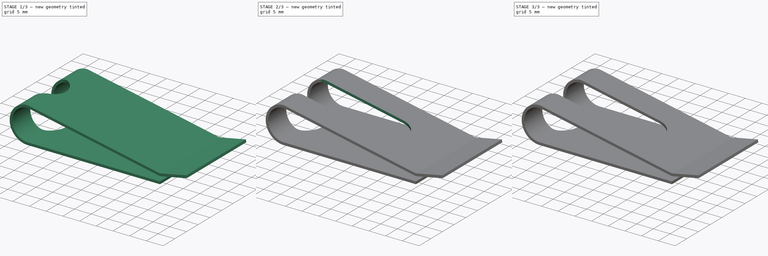
[diagram: build sequence overview — one tinted view per stage of 3, left to right]
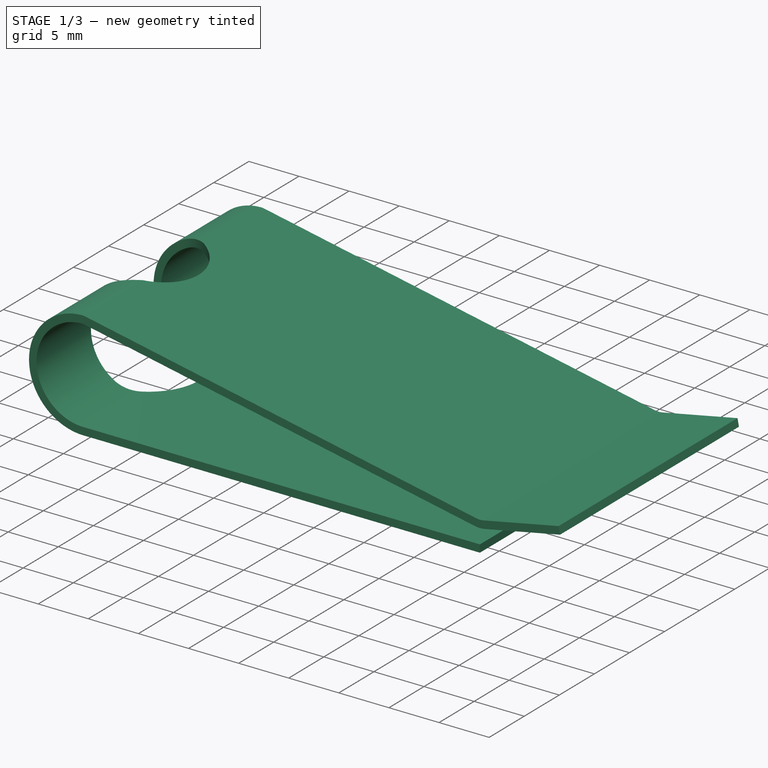
[diagram: stage 1 of 3 — iso view after this stage's code; geometry added in this stage tinted green]
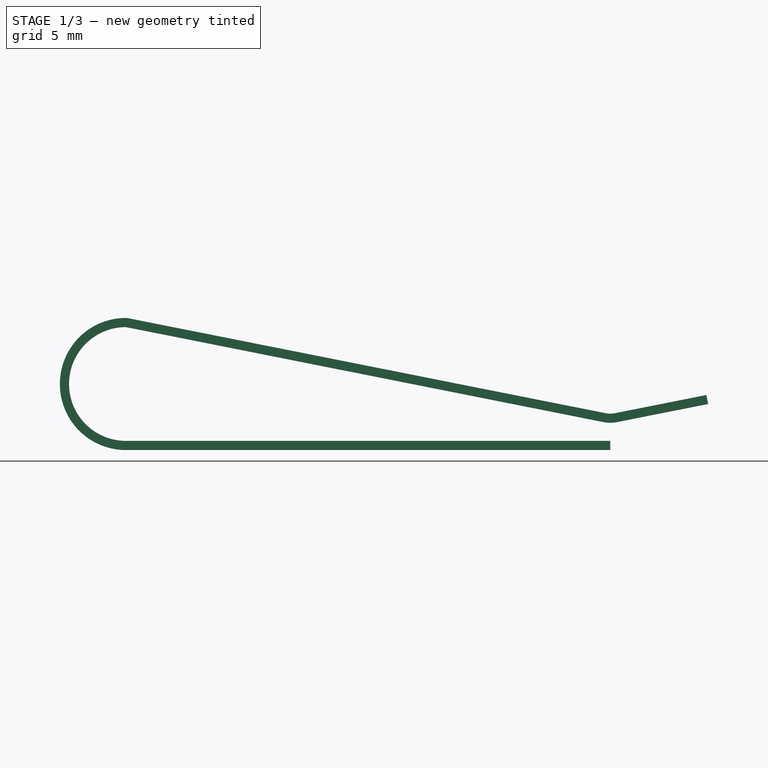
[diagram: stage 1 of 3 — front view after this stage's code; geometry added in this stage tinted green]
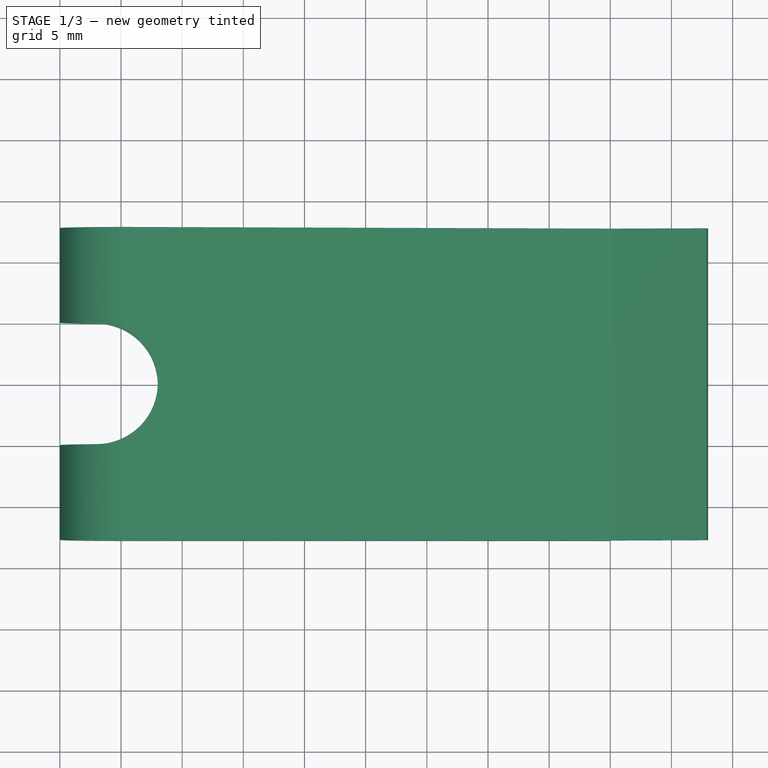
[diagram: stage 1 of 3 — top view after this stage's code; geometry added in this stage tinted green]
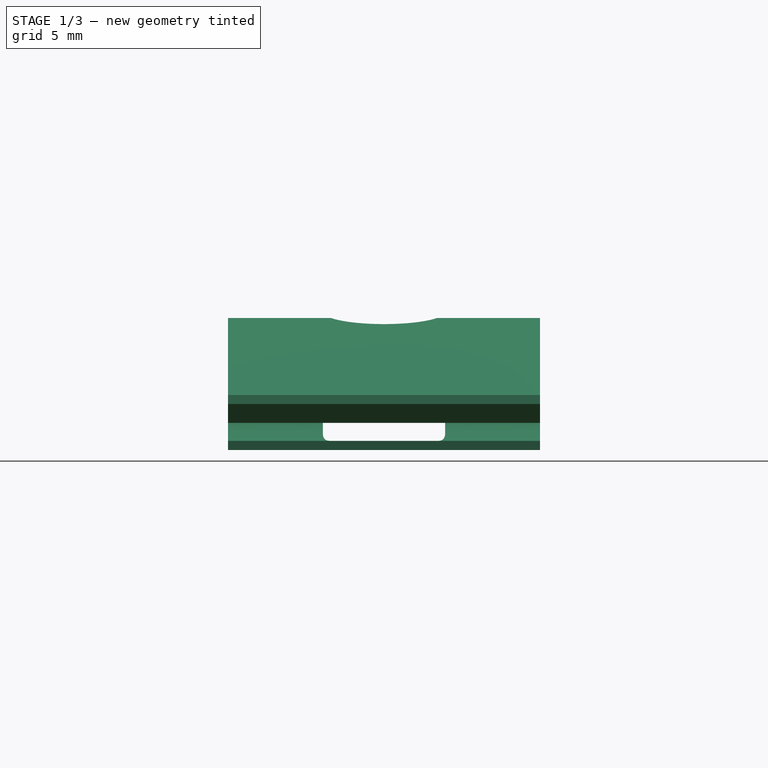
[diagram: stage 1 of 3 — right view after this stage's code; geometry added in this stage tinted green]
FCSTD DOCUMENT  (FreeCAD 0.19R22039 (Git))
Label: Bluemoona Metal Belt Clip
License: All rights reserved
LicenseURL: http://en.wikipedia.org/wiki/All_rights_reserved
objects: Sketcher::SketchObject×4, PartDesign::Pocket×3, Part::Feature×2, PartDesign::Pad×1, PartDesign::LinearPattern×1, PartDesign::Body×1, App::Part×1
note: 16 computed .brp shape members not serialized (recipe doc carries the construction recipe); baked Part::Feature solids carry a one-line shape summary decoded from their .brp

FEATURE [Sketcher::SketchObject] Sketch
  MapMode = 5
  Placement = pos=(0,0,0) rot=(1,0,0;1.5708rad)
  Support = -> [XZ_Plane001]
  sketch-geometry (13):
    g0: LineSegment StartX=0 StartY=0 StartZ=0 EndX=-39.5997 EndY=0 EndZ=0
    g1: ArcOfCircle CenterX=-39.5997 CenterY=5.40027 CenterZ=0 NormalX=0 NormalY=0 NormalZ=1 AngleXU=0 Radius=5.40027 StartAngle=1.55661 EndAngle=4.71239
    g2: LineSegment StartX=-39.5231 StartY=10.8 StartZ=0 EndX=-0.387961 EndY=3.01485 EndZ=0
    g3: ArcOfCircle CenterX=0 CenterY=4.96509 CenterZ=0 NormalX=0 NormalY=0 NormalZ=1 AngleXU=0 Radius=1.98846 StartAngle=4.51602 EndAngle=4.90876
    g4: LineSegment StartX=0.387961 StartY=3.01485 StartZ=0 EndX=7.85367 EndY=4.5 EndZ=0
    g5: LineSegment StartX=0 StartY=0.75 StartZ=0 EndX=-39.5997 EndY=0.75 EndZ=0
    g6: ArcOfCircle CenterX=-39.5997 CenterY=5.40027 CenterZ=0 NormalX=0 NormalY=0 NormalZ=1 AngleXU=0 Radius=4.65027 StartAngle=1.5708 EndAngle=4.71239
    g7: LineSegment StartX=-39.5997 StartY=10.0505 StartZ=0 EndX=-0.534291 EndY=2.27926 EndZ=0
    g8: ArcOfCircle CenterX=0 CenterY=4.96509 CenterZ=0 NormalX=0 NormalY=0 NormalZ=1 AngleXU=0 Radius=2.73846 StartAngle=4.51602 EndAngle=4.90876
    g9: LineSegment StartX=0.534291 StartY=2.27926 StartZ=0 EndX=8 EndY=3.76441 EndZ=0
    g10: LineSegment StartX=7.85367 StartY=4.5 StartZ=0 EndX=8 EndY=3.76441 EndZ=0
    g11: LineSegment StartX=0 StartY=0.75 StartZ=0 EndX=0 EndY=0 EndZ=0
    g12: GeomPoint X=-45 Y=5.40027 Z=0
  constraints (32):
    c: PointOnObject(g0,g-1)
    c: Tangent(g0,g1) = 1.5708
    c: Tangent(g2,g3) = -1.5708
    c: Tangent(g3,g4) = -1.5708
    c: Tangent(g5,g6) = 1.5708
    c: Tangent(g7,g8) = -1.5708
    c: Tangent(g8,g9) = -1.5708
    c: Coincident(g10,g4)
    c: Coincident(g10,g9)
    c: Coincident(g11,g5)
    c: Coincident(g11,g0)
    c: Vertical(g11)
    c: Perpendicular(g10,g4)
    c: Perpendicular(g9,g10)
    c: Horizontal(g5)
    c: Coincident(g1,g6)
    c: Coincident(g8,g3)
    c: PointOnObject(g12,g1)
    c: DistanceY(g1,g12) = 0
    c: Distance(g11) = 0.75
    c: Distance(g10) = 0.75
    c: Parallel(g7,g2)
    c: DistanceX(g12,g9) = 53
    c: DistanceX(g3,g0) = 0
    c: Coincident(g7,g6)
    c: Coincident(g2,g1)
    c: DistanceY(g0,g1) = 10.8
    c: DistanceX(g12,g0) = 45
    c: DistanceY(g0,g4) = 4.5
    c: Horizontal(g3,g2)
    c: Coincident(g-1,g0)
    c: Vertical(g1,g6)
FEATURE [PartDesign::Pad] Pad
  Length = 25.5
  Length2 = 100
  Midplane = true
  Placement = pos=(0,0,0) rot=(1,0,0;1.5708rad)
  Profile = -> Sketch
  Type = 0
FEATURE [Sketcher::SketchObject] Sketch001
  MapMode = 5
  Support = -> [XY_Plane001]
  sketch-geometry (5):
    g0: ArcOfCircle CenterX=-42 CenterY=0 CenterZ=0 NormalX=0 NormalY=0 NormalZ=1 AngleXU=0 Radius=5 StartAngle=4.7124 EndAngle=7.85398
    g1: LineSegment StartX=-42 StartY=5 StartZ=0 EndX=-56.505 EndY=5 EndZ=0
    g2: LineSegment StartX=-56.505 StartY=5 StartZ=0 EndX=-56.505 EndY=-5 EndZ=0
    g3: LineSegment StartX=-42 StartY=-5 StartZ=0 EndX=-56.505 EndY=-5 EndZ=0
    g4: GeomPoint X=-37 Y=0 Z=0
  constraints (14):
    c: PointOnObject(g0,g-1)
    c: Radius(g0) = 5
    c: Coincident(g1,g0)
    c: Horizontal(g1)
    c: Coincident(g2,g1)
    c: Vertical(g2)
    c: Coincident(g3,g0)
    c: Coincident(g3,g2)
    c: Horizontal(g3)
    c: DistanceY(g2,g2) = 10
    c: PointOnObject(g4,g0)
    c: PointOnObject(g4,g-1)
    c: DistanceX(g4,g-1) = 37
    c: Vertical(g0,g0)
FEATURE [PartDesign::Pocket] Pocket
  BaseFeature = -> Pad
  Length = 12
  Length2 = 100
  Placement = pos=(0,0,0) rot=(1,0,0;1.5708rad)
  Profile = -> Sketch001
  Reversed = true
  Type = 0
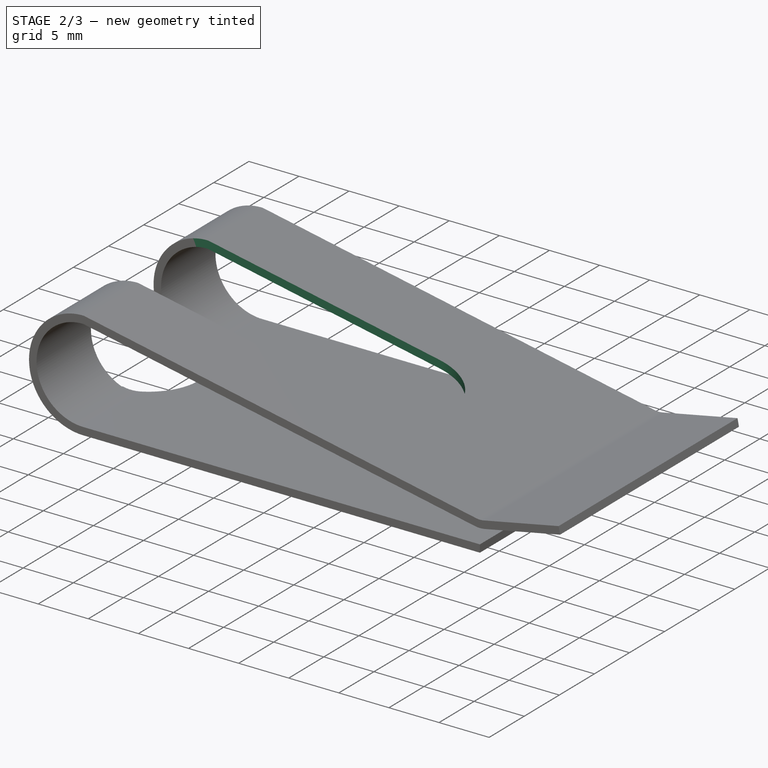
[diagram: stage 2 of 3 — iso view after this stage's code; geometry added in this stage tinted green]
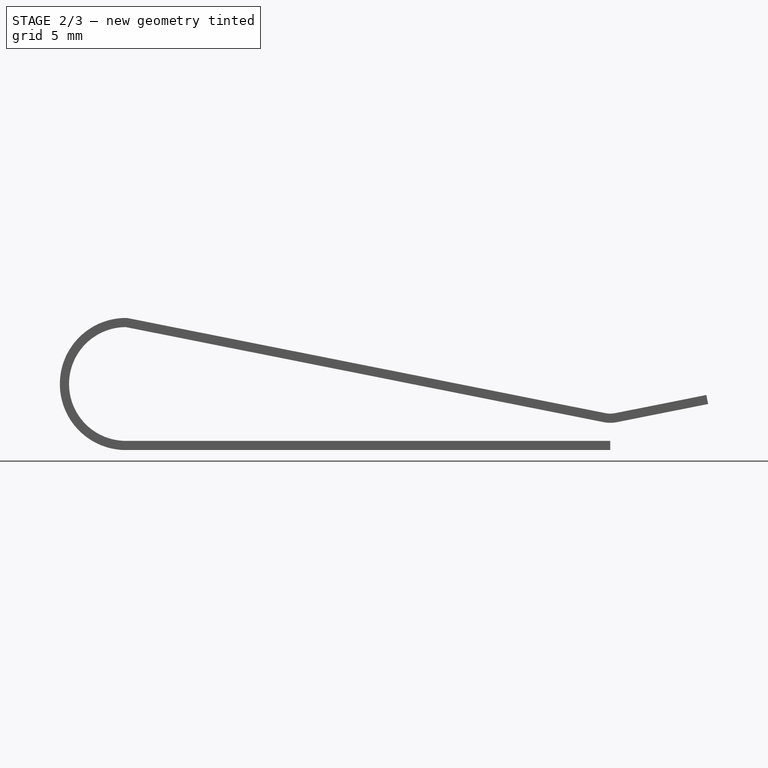
[diagram: stage 2 of 3 — front view after this stage's code; geometry added in this stage tinted green]
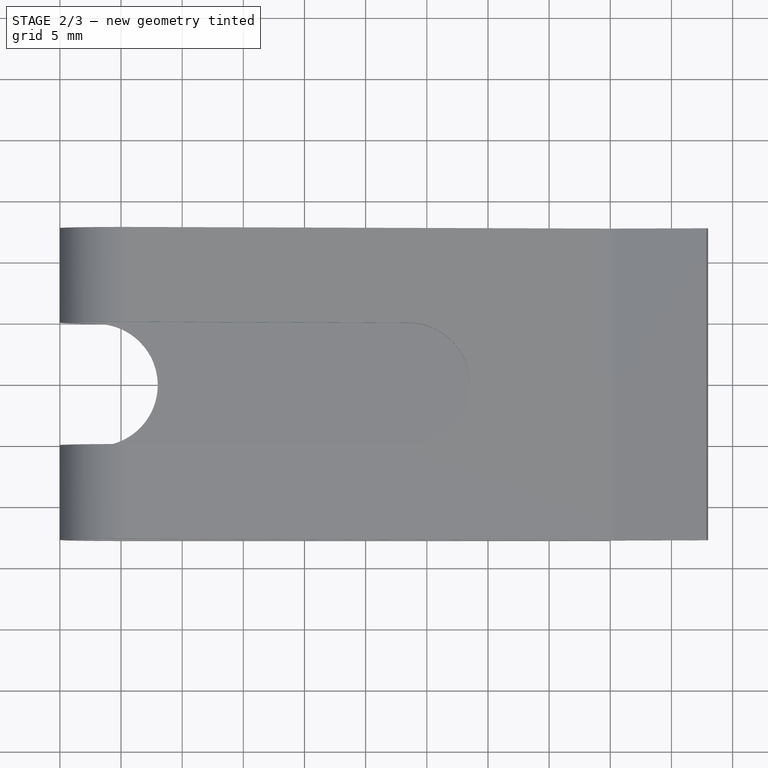
[diagram: stage 2 of 3 — top view after this stage's code; geometry added in this stage tinted green]
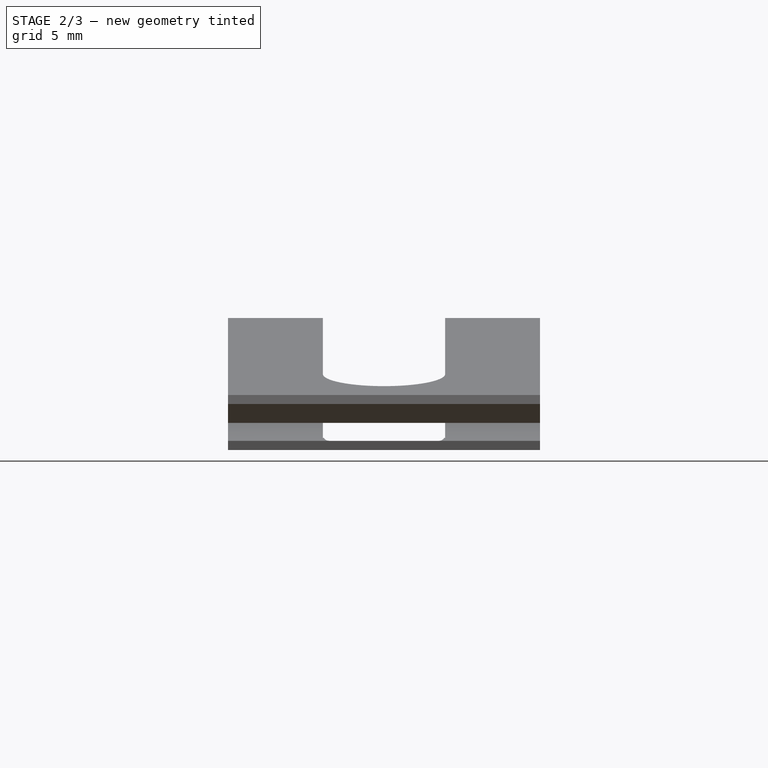
[diagram: stage 2 of 3 — right view after this stage's code; geometry added in this stage tinted green]
FEATURE [Sketcher::SketchObject] Sketch002
  AttachmentOffset = pos=(0,0,1) rot=(0,0,1;0rad)
  MapMode = 5
  Placement = pos=(0,0,1) rot=(0,0,1;0rad)
  Support = -> [XY_Plane001]
  expr: Constraints[9] = Sketch001.Constraints[9]
  expr: Constraints[1] = Sketch001.Constraints[1]
  sketch-geometry (5):
    g0: ArcOfCircle CenterX=-16.5 CenterY=0 CenterZ=0 NormalX=0 NormalY=0 NormalZ=1 AngleXU=0 Radius=5 StartAngle=4.71239 EndAngle=7.85398
    g1: LineSegment StartX=-16.5 StartY=5 StartZ=0 EndX=-55.5394 EndY=5 EndZ=0
    g2: LineSegment StartX=-55.5394 StartY=5 StartZ=0 EndX=-55.5394 EndY=-5 EndZ=0
    g3: LineSegment StartX=-16.5 StartY=-5 StartZ=0 EndX=-55.5394 EndY=-5 EndZ=0
    g4: GeomPoint X=-11.5 Y=0 Z=0
  constraints (13):
    c: PointOnObject(g0,g-1)
    c: Radius(g0) = 5
    c: Coincident(g1,g0)
    c: Horizontal(g1)
    c: Coincident(g2,g1)
    c: Vertical(g2)
    c: Coincident(g3,g0)
    c: Coincident(g3,g2)
    c: Horizontal(g3)
    c: DistanceY(g2,g2) = 10
    c: PointOnObject(g4,g0)
    c: PointOnObject(g4,g-1)
    c: DistanceX(g4,g-1) = 11.5
FEATURE [PartDesign::Pocket] Pocket001
  BaseFeature = -> Pocket
  Length = 0
  Length2 = 7
  Placement = pos=(0,0,0) rot=(1,0,0;1.5708rad)
  Profile = -> Sketch002
  Reversed = true
  Type = 3
  UpToFace = -> Pocket [Face11]
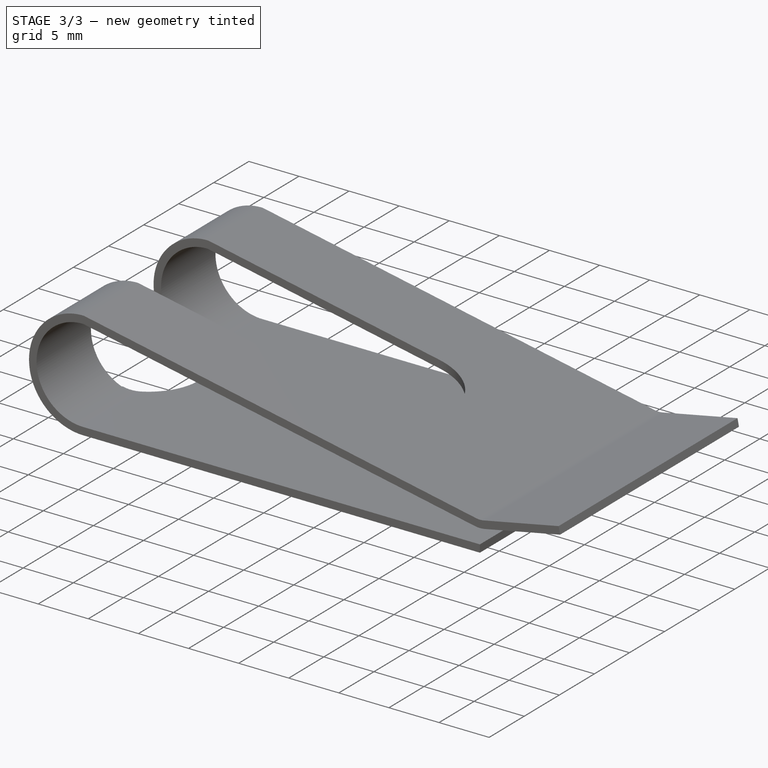
[diagram: stage 3 of 3 — iso view after this stage's code; geometry added in this stage tinted green]
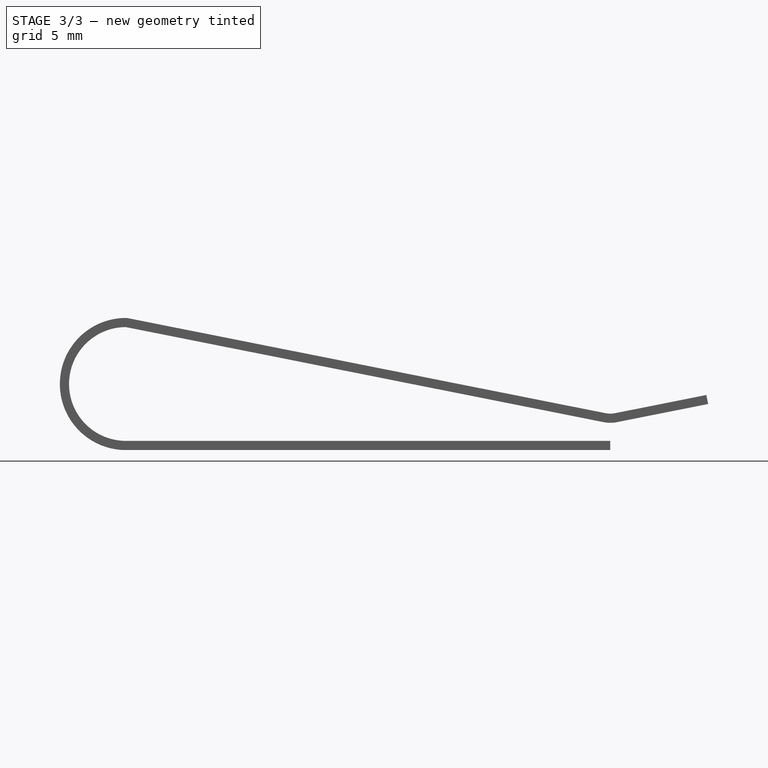
[diagram: stage 3 of 3 — front view after this stage's code; geometry added in this stage tinted green]
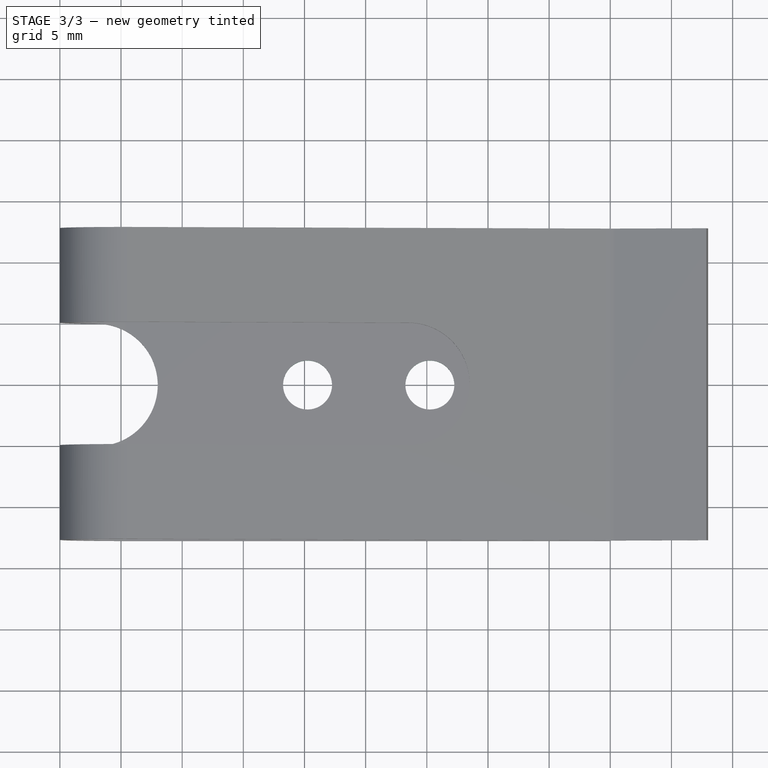
[diagram: stage 3 of 3 — top view after this stage's code; geometry added in this stage tinted green]
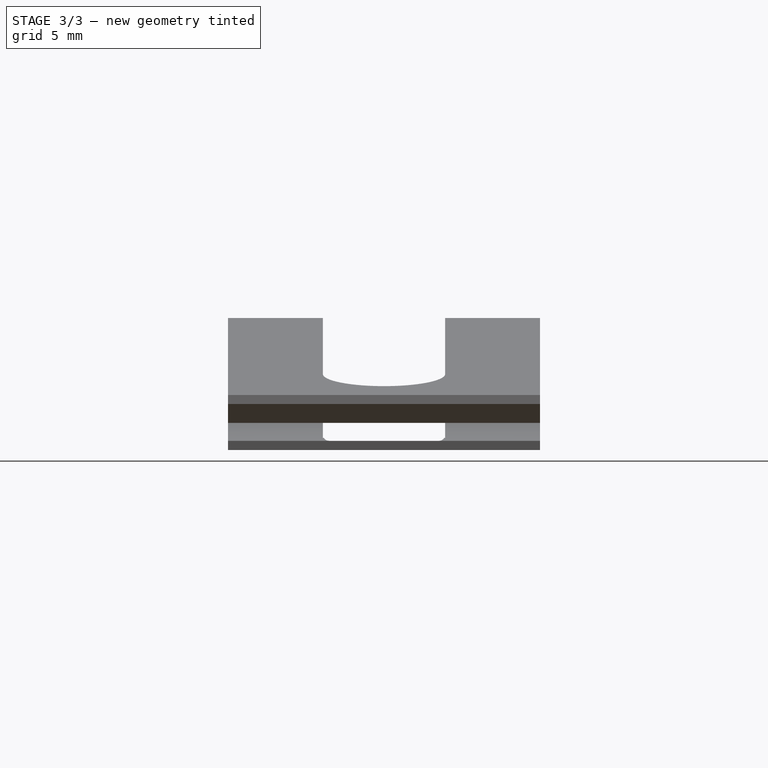
[diagram: stage 3 of 3 — right view after this stage's code; geometry added in this stage tinted green]
FEATURE [Sketcher::SketchObject] Sketch003
  MapMode = 5
  Support = -> [XY_Plane001]
  expr: Constraints[9] = Sketch002.Constraints[9]
  expr: Constraints[1] = Sketch002.Constraints[1]
  sketch-geometry (5):
    g0: ArcOfCircle [constr] CenterX=-14.75 CenterY=0 CenterZ=0 NormalX=0 NormalY=0 NormalZ=1 AngleXU=0 Radius=5 StartAngle=4.71238 EndAngle=7.85398
    g1: LineSegment [constr] StartX=-14.75 StartY=5 StartZ=0 EndX=-55.5394 EndY=5 EndZ=0
    g2: LineSegment [constr] StartX=-55.5394 StartY=5 StartZ=0 EndX=-55.5394 EndY=-5 EndZ=0
    g3: LineSegment [constr] StartX=-14.75 StartY=-5 StartZ=0 EndX=-55.5394 EndY=-5 EndZ=0
    g4: Circle CenterX=-14.75 CenterY=0 CenterZ=0 NormalX=0 NormalY=0 NormalZ=1 AngleXU=0 Radius=2
  constraints (13):
    c: PointOnObject(g0,g-1)
    c: Radius(g0) = 5
    c: Coincident(g1,g0)
    c: Horizontal(g1)
    c: Coincident(g2,g1)
    c: Vertical(g2)
    c: Coincident(g3,g0)
    c: Coincident(g3,g2)
    c: Horizontal(g3)
    c: DistanceY(g2,g2) = 10
    c: Coincident(g4,g0)
    c: Diameter(g4) = 4
    c: DistanceX(g4,g-1) = 14.75
FEATURE [PartDesign::Pocket] Pocket002
  BaseFeature = -> Pocket001
  Length = 5
  Length2 = 100
  Placement = pos=(0,0,0) rot=(1,0,0;1.5708rad)
  Profile = -> Sketch003
  Reversed = true
  Type = 1
FEATURE [PartDesign::LinearPattern] LinearPattern
  BaseFeature = -> Pocket002
  Direction = -> Sketch003 [H_Axis]
  Length = 10
  Occurrences = 2
  Originals = -> [Pocket002]
  Placement = pos=(0,0,0) rot=(1,0,0;1.5708rad)
  Reversed = true
FEATURE [PartDesign::Body] Body
  Group = -> [Sketch,Pad,Sketch001,Pocket,Sketch002,Pocket001,Sketch003,Pocket002,LinearPattern]
  Origin = -> Origin001
  Tip = -> LinearPattern
FEATURE [App::Part] Part  label="Belt Clip"
  Group = -> [Body]
  Origin = -> Origin
FEATURE [Part::Feature] LinearPattern_cp
  Placement = pos=(0,0,0) rot=(1,0,0;1.5708rad)
  shape: bbox 53 x 25.5 x 10.8 mm, 30 faces (baked)
FEATURE [Part::Feature] Shape  label="Belt_Clip_cp"
  shape: bbox 53 x 25.5 x 10.8 mm, 30 faces (baked)
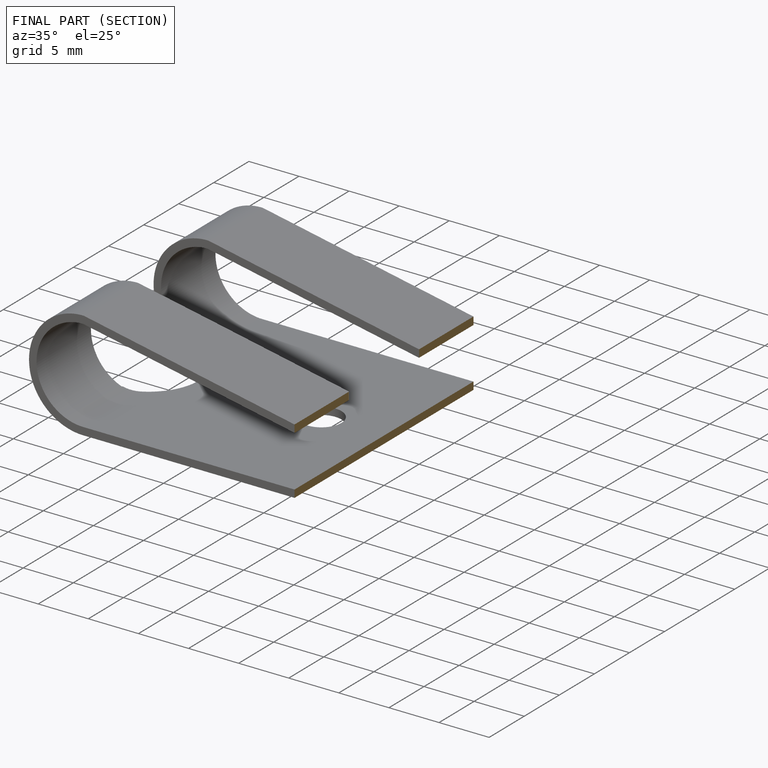
[diagram: finished part — half-section view (interior)]
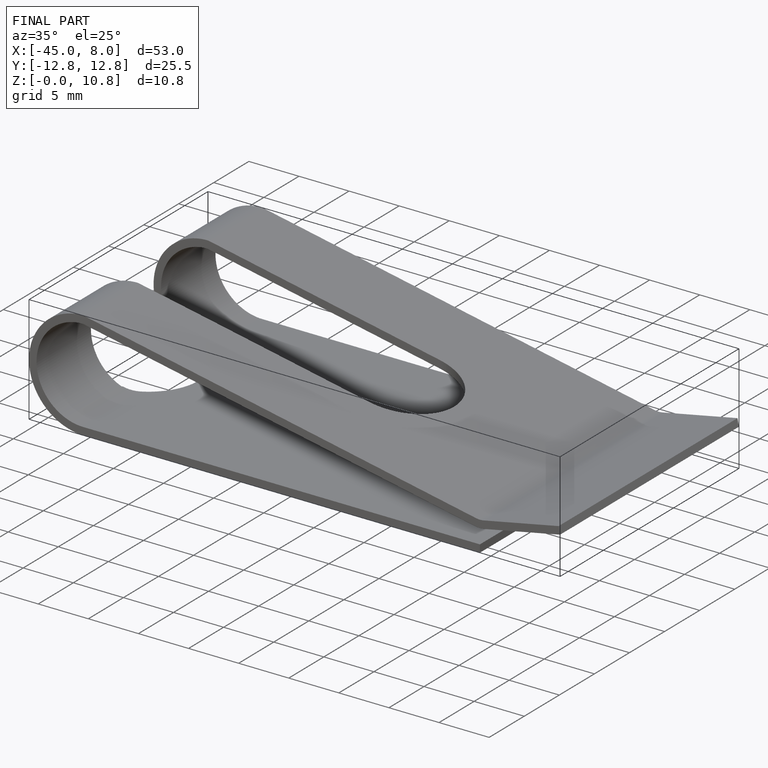
[diagram: finished part — iso view with bounding-box wireframe]
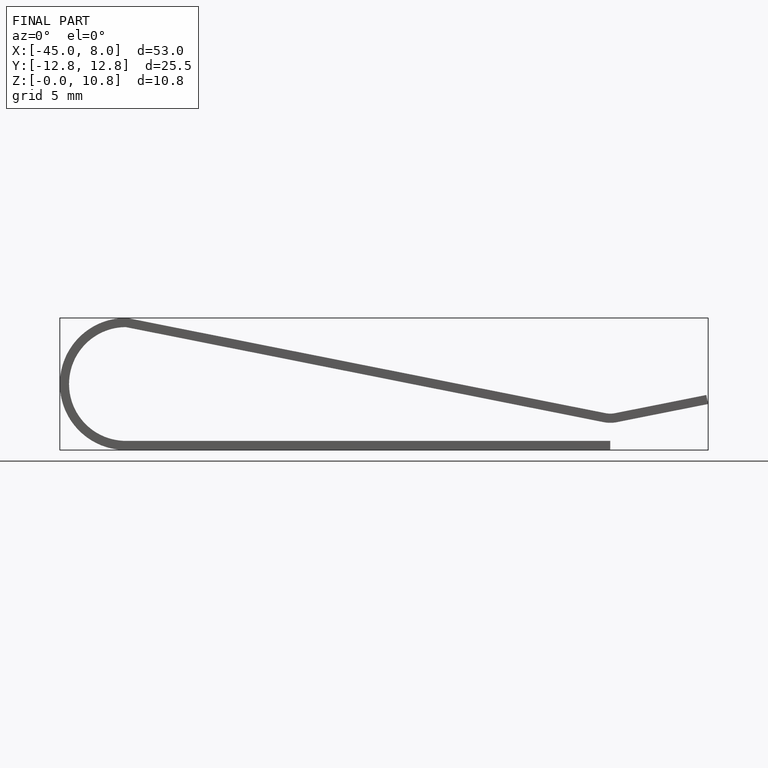
[diagram: finished part — front view with bounding-box wireframe]
